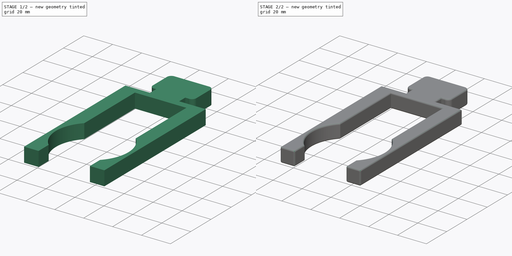
[diagram: build sequence overview — one tinted view per stage of 2, left to right]
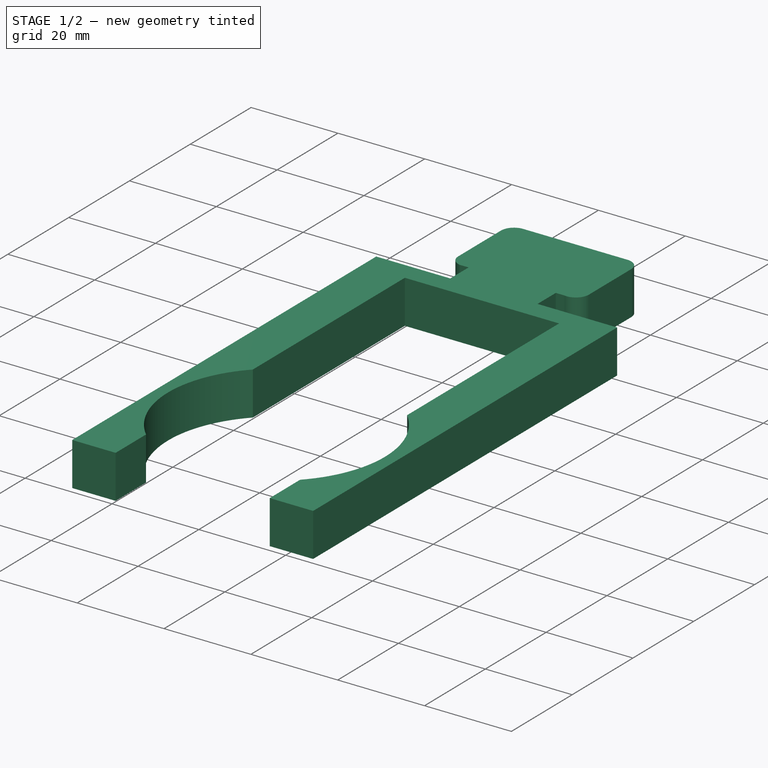
[diagram: stage 1 of 2 — iso view after this stage's code; geometry added in this stage tinted green]
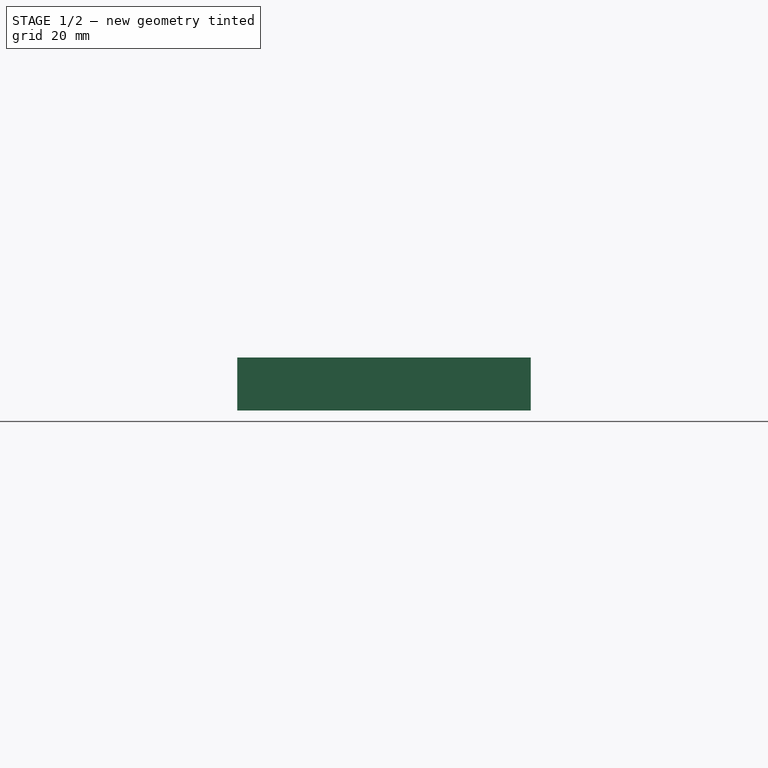
[diagram: stage 1 of 2 — front view after this stage's code; geometry added in this stage tinted green]
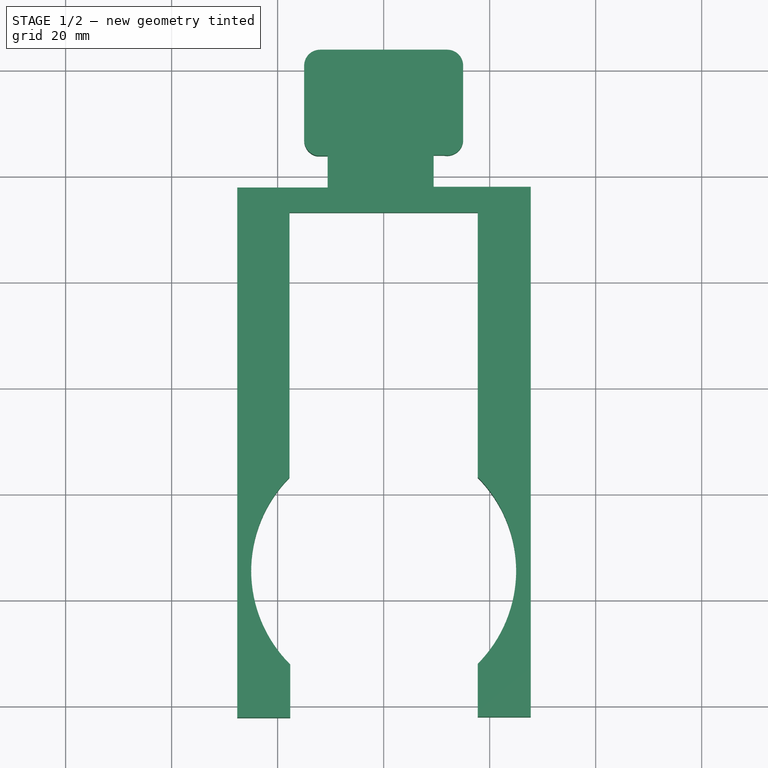
[diagram: stage 1 of 2 — top view after this stage's code; geometry added in this stage tinted green]
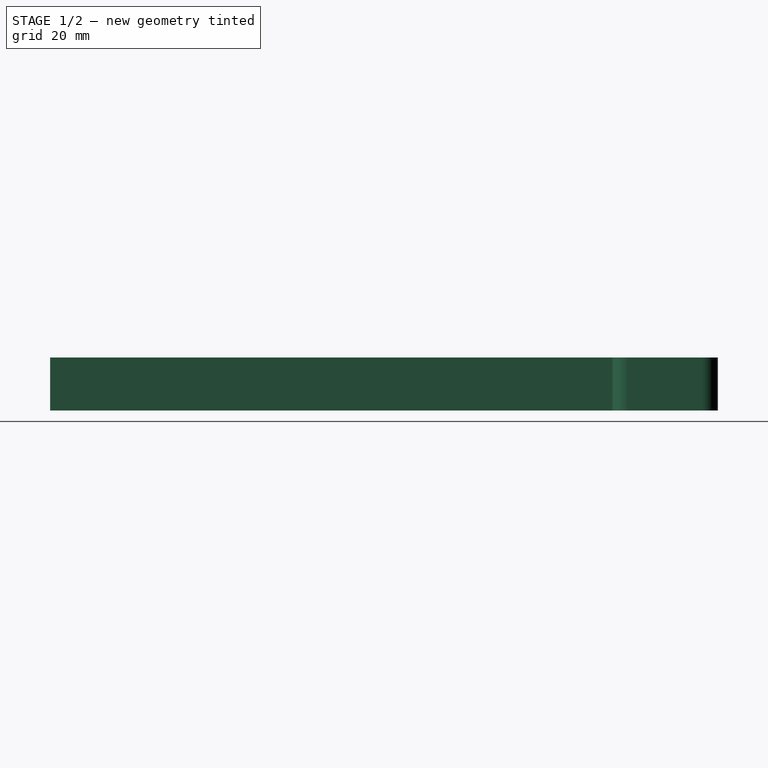
[diagram: stage 1 of 2 — right view after this stage's code; geometry added in this stage tinted green]
FCSTD DOCUMENT  (FreeCAD 0.20R29177 +426 (Git))
Label: Holder
License: All rights reserved
LicenseURL: http://en.wikipedia.org/wiki/All_rights_reserved
objects: Sketcher::SketchObject×1, PartDesign::Pad×1, PartDesign::Fillet×1, PartDesign::Body×1
note: 6 computed .brp shape members not serialized (recipe doc carries the construction recipe); baked Part::Feature solids carry a one-line shape summary decoded from their .brp

FEATURE [Sketcher::SketchObject] Sketch
  FullyConstrained = false
  MapMode = 5
  Support = -> [XY_Plane]
  sketch-geometry (24):
    g0: LineSegment StartX=9.43541 StartY=3.95864 StartZ=0 EndX=9.43541 EndY=-2.04136 EndZ=0
    g1: LineSegment StartX=9.43541 StartY=-2.04136 StartZ=0 EndX=27.7629 EndY=-2.04136 EndZ=0
    g2: LineSegment StartX=27.7629 StartY=-2.04136 StartZ=0 EndX=27.7629 EndY=-102.041 EndZ=0
    g3: LineSegment StartX=27.7629 StartY=-102.041 StartZ=0 EndX=17.7629 EndY=-102.041 EndZ=0
    g4: LineSegment StartX=17.7629 StartY=-102.041 StartZ=0 EndX=17.7629 EndY=-92.0414 EndZ=0
    g5: ArcOfCircle CenterX=5.5e-15 CenterY=-74.4493 CenterZ=0 NormalX=0 NormalY=0 NormalZ=1 AngleXU=0 Radius=25 StartAngle=5.50262 EndAngle=7.06375
    g6: LineSegment StartX=17.7629 StartY=-56.8573 StartZ=0 EndX=17.7629 EndY=-6.85726 EndZ=0
    g7: LineSegment StartX=-10.5646 StartY=3.83157 StartZ=0 EndX=-10.5646 EndY=-2.16843 EndZ=0
    g8: LineSegment StartX=-10.5646 StartY=-2.16843 StartZ=0 EndX=-27.6361 EndY=-2.16843 EndZ=0
    g9: LineSegment StartX=-27.6361 StartY=-2.16843 StartZ=0 EndX=-27.6361 EndY=-102.168 EndZ=0
    g10: LineSegment StartX=-27.6361 StartY=-102.168 StartZ=0 EndX=-17.6361 EndY=-102.168 EndZ=0
    g11: LineSegment StartX=-17.6361 StartY=-102.168 StartZ=0 EndX=-17.6361 EndY=-92.1684 EndZ=0
    g12: ArcOfCircle CenterX=5.5e-15 CenterY=-74.4493 CenterZ=0 NormalX=0 NormalY=0 NormalZ=1 AngleXU=0 Radius=25 StartAngle=2.36103 EndAngle=3.92934
    g13: LineSegment StartX=-17.7629 StartY=-56.8573 StartZ=0 EndX=-17.7629 EndY=-6.85726 EndZ=0
    g14: LineSegment StartX=-17.7629 StartY=-6.85726 StartZ=0 EndX=17.7629 EndY=-6.85726 EndZ=0
    g15: ArcOfCircle CenterX=-12 CenterY=20.8316 CenterZ=0 NormalX=0 NormalY=0 NormalZ=1 AngleXU=0 Radius=3 StartAngle=1.5708 EndAngle=3.14159
    g16: ArcOfCircle CenterX=12 CenterY=20.8316 CenterZ=0 NormalX=0 NormalY=0 NormalZ=1 AngleXU=0 Radius=3 StartAngle=-9e-16 EndAngle=1.5708
    g17: LineSegment StartX=-12 StartY=23.8316 StartZ=0 EndX=12 EndY=23.8316 EndZ=0
    g18: ArcOfCircle CenterX=-12.0005 CenterY=6.77805 CenterZ=0 NormalX=0 NormalY=0 NormalZ=1 AngleXU=0 Radius=3 StartAngle=3.12375 EndAngle=4.52322
    g19: ArcOfCircle CenterX=12.0009 CenterY=6.90486 CenterZ=0 NormalX=0 NormalY=0 NormalZ=1 AngleXU=0 Radius=3 StartAngle=4.52276 EndAngle=6.25875
    g20: LineSegment StartX=-15 StartY=20.8316 StartZ=0 EndX=-15 EndY=6.83157 EndZ=0
    g21: LineSegment StartX=-12.5646 StartY=3.83157 StartZ=0 EndX=-10.5646 EndY=3.83157 EndZ=0
    g22: LineSegment StartX=9.43541 StartY=3.95864 StartZ=0 EndX=11.4354 EndY=3.95864 EndZ=0
    g23: LineSegment StartX=15 StartY=6.83157 StartZ=0 EndX=15 EndY=20.8316 EndZ=0
  constraints (70):
    c: Coincident(g0,g1)
    c: Horizontal(g1)
    c: Coincident(g1,g2)
    c: Vertical(g2)
    c: Coincident(g2,g3)
    c: Horizontal(g3)
    c: Coincident(g3,g4)
    c: Vertical(g4)
    c: Coincident(g5,g4)
    c: Vertical(g5,g4)
    c: Coincident(g6,g5)
    c: Vertical(g6)
    c: Coincident(g7,g8)
    c: Horizontal(g8)
    c: Coincident(g8,g9)
    c: Vertical(g9)
    c: Coincident(g9,g10)
    c: Horizontal(g10)
    c: Coincident(g10,g11)
    c: Vertical(g11)
    c: Coincident(g12,g11)
    c: Coincident(g13,g12)
    c: Vertical(g13)
    c: Coincident(g14,g13)
    c: Coincident(g14,g6)
    c: Vertical(g0)
    c: Vertical(g7)
    c: Equal(g7,g0)
    c: DistanceX(g7,g0) = 20
    c: Equal(g2,g9)
    c: DistanceY(g2,g2) = 100
    c: Symmetric(g13,g6,g-2)
    c: Equal(g6,g13)
    c: Equal(g11,g4)
    c: Equal(g5,g12)
    c: Equal(g10,g3)
    c: DistanceY(g6,g6) = 50
    c: Coincident(g12,g5)
    c: Radius(g12) = 25
    c: DistanceY(g7,g7) = 6
    c: DistanceX(g10,g10) = 10
    c: DistanceY(g4,g4) = 10
    c: Radius(g15) = 3
    c: Radius(g16) = 3
    c: Coincident(g17,g15)
    c: Coincident(g17,g16)
    c: Radius(g18) = 3
    c: DistanceX(g15,g16) = 30
    c: Symmetric(g16,g15,g-2)
    c: Radius(g19) = 3
    c: Coincident(g20,g15)
    c: Coincident(g20,g18)
    c: Vertical(g20)
    c: Coincident(g21,g18)
    c: Coincident(g21,g7)
    c: Horizontal(g21)
    c: Coincident(g22,g0)
    c: Coincident(g22,g19)
    c: Coincident(g23,g19)
    c: Coincident(g23,g16)
    c: Vertical(g23)
    c: Equal(g23,g20)
    c: Equal(g21,g22)
    c: Horizontal(g22)
    c: Symmetric(g15,g16,g-2)
    c: DistanceX(g17,g17) = 24
    c: DistanceX(g21,g21) = 2
    c: DistanceY(g15,g15) = 3
    c: DistanceY(g18,g18) = 3
    c: DistanceY(g20,g20) = 14
FEATURE [PartDesign::Pad] Pad
  Direction = (0,0,1)
  Length = 10
  Length2 = 10
  Profile = -> Sketch
  ReferenceAxis = -> Sketch [N_Axis]
  Refine = true
  Type = 0
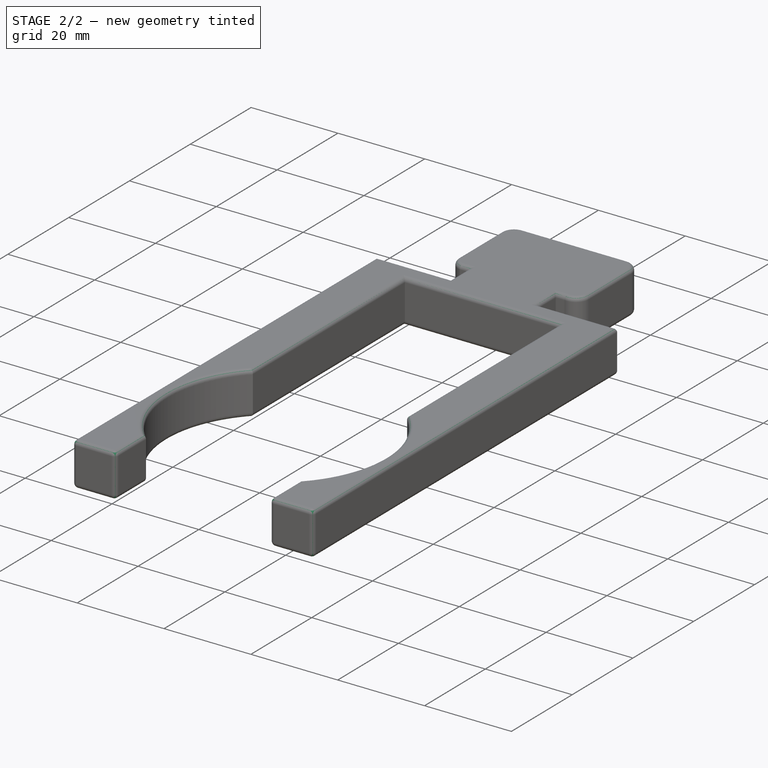
[diagram: stage 2 of 2 — iso view after this stage's code; geometry added in this stage tinted green]
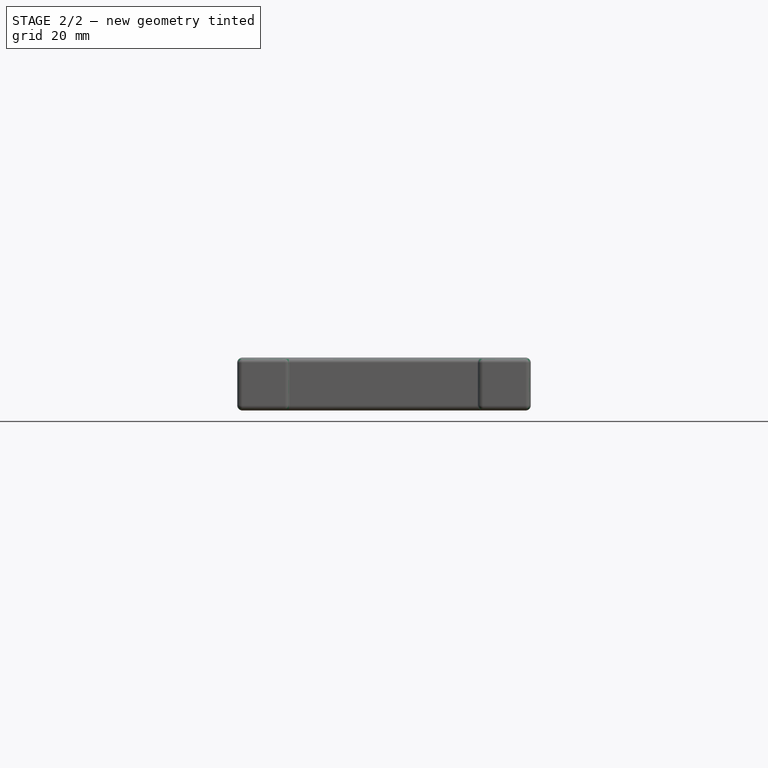
[diagram: stage 2 of 2 — front view after this stage's code; geometry added in this stage tinted green]
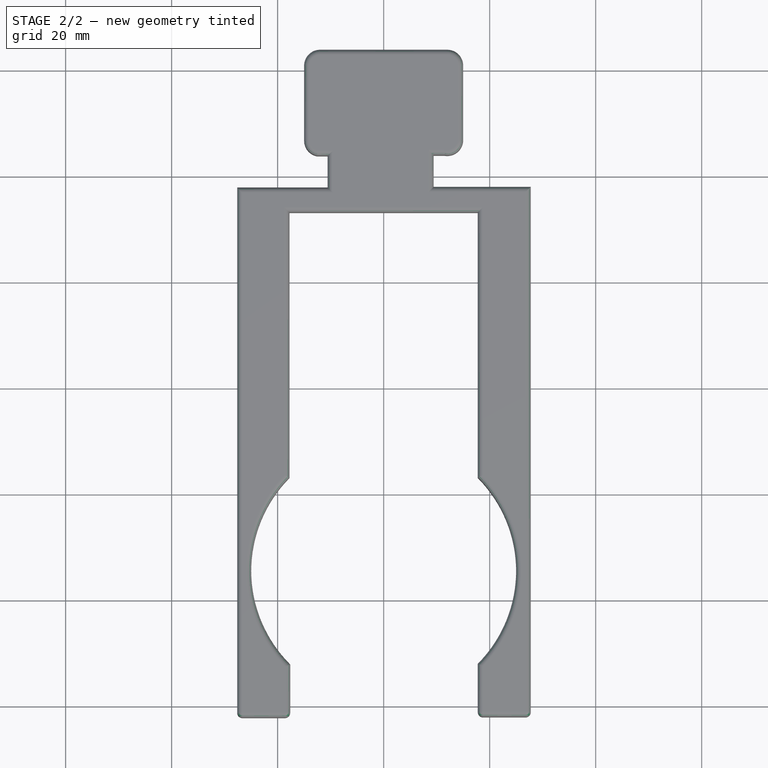
[diagram: stage 2 of 2 — top view after this stage's code; geometry added in this stage tinted green]
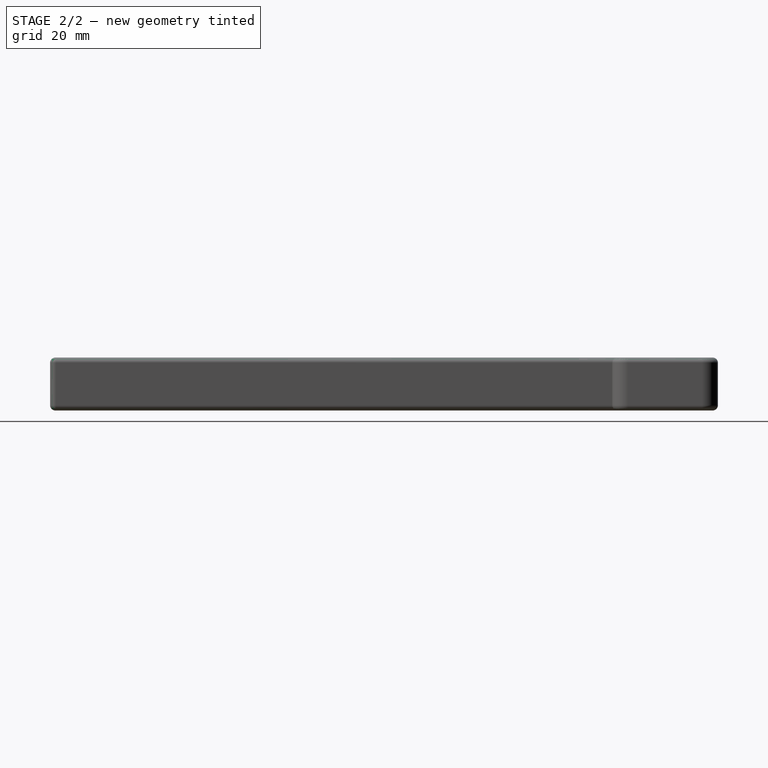
[diagram: stage 2 of 2 — right view after this stage's code; geometry added in this stage tinted green]
FEATURE [PartDesign::Fillet] Fillet
  Base = -> Pad [Face26,Face25,Face12,Face4]
  BaseFeature = -> Pad
  Radius = 1
  Refine = true
  SupportTransform = false
  UseAllEdges = false
FEATURE [PartDesign::Body] Body
  Group = -> [Sketch,Pad,Fillet]
  Origin = -> Origin
  Tip = -> Fillet
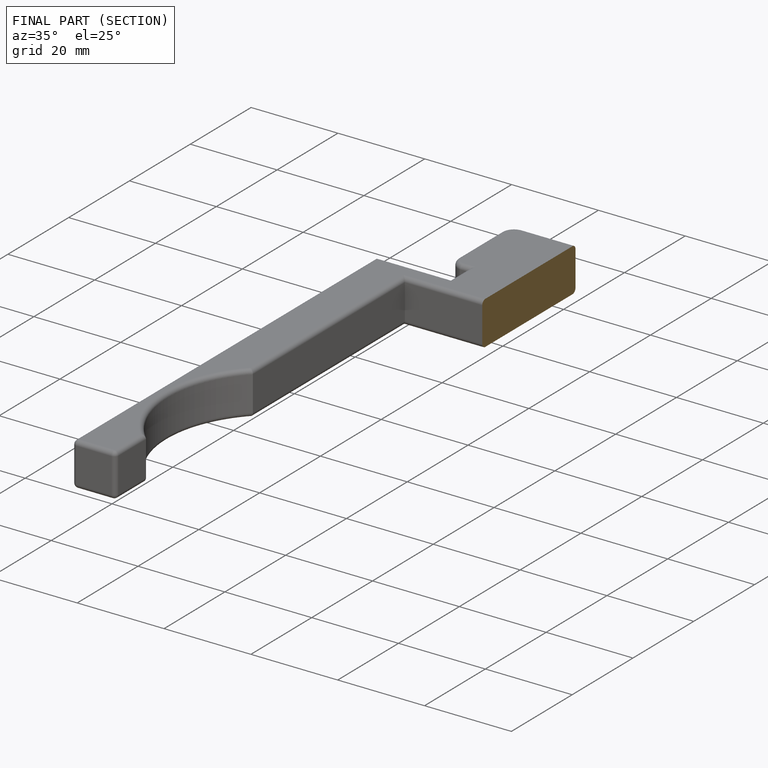
[diagram: finished part — half-section view (interior)]
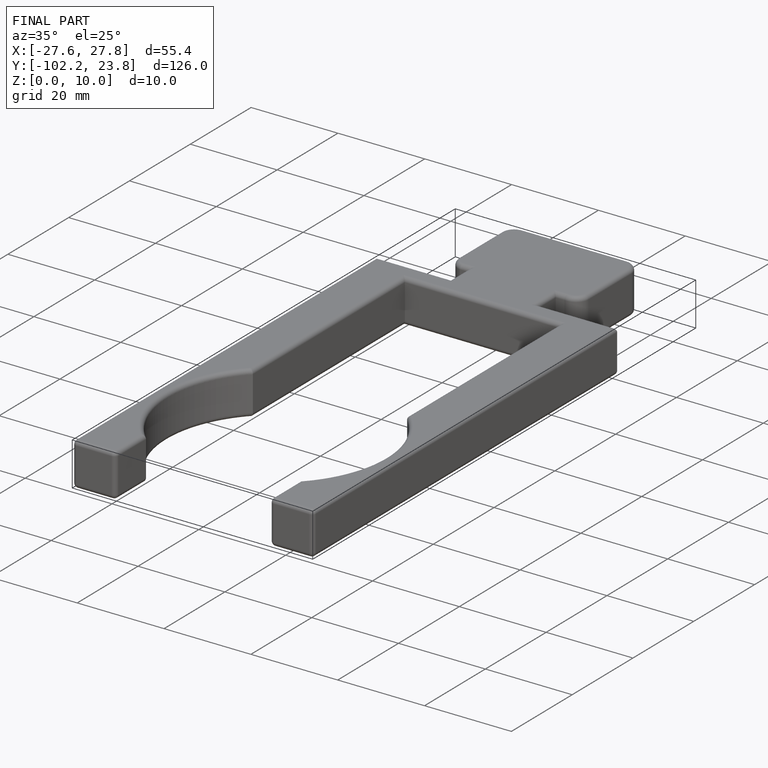
[diagram: finished part — iso view with bounding-box wireframe]
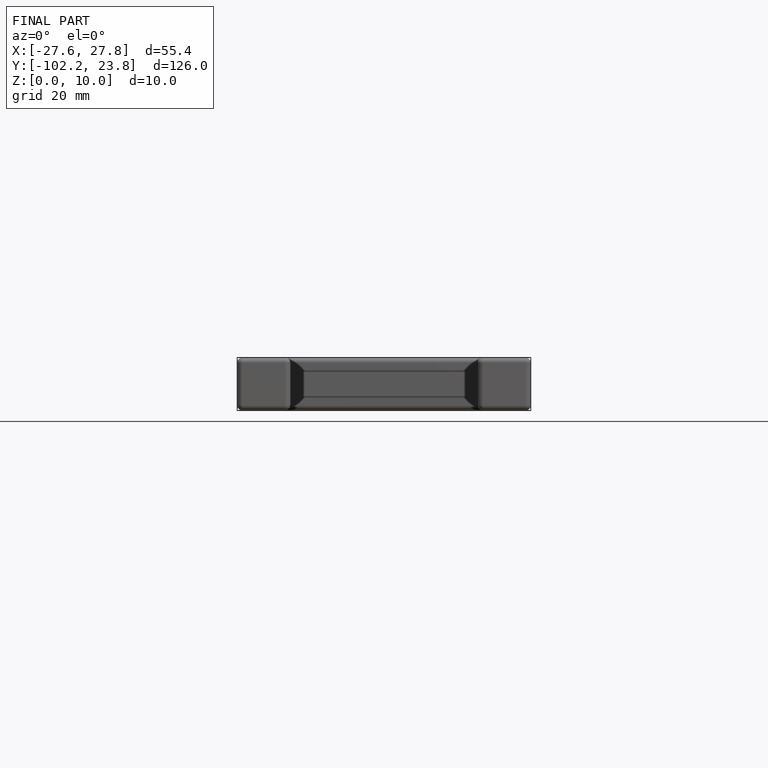
[diagram: finished part — front view with bounding-box wireframe]
